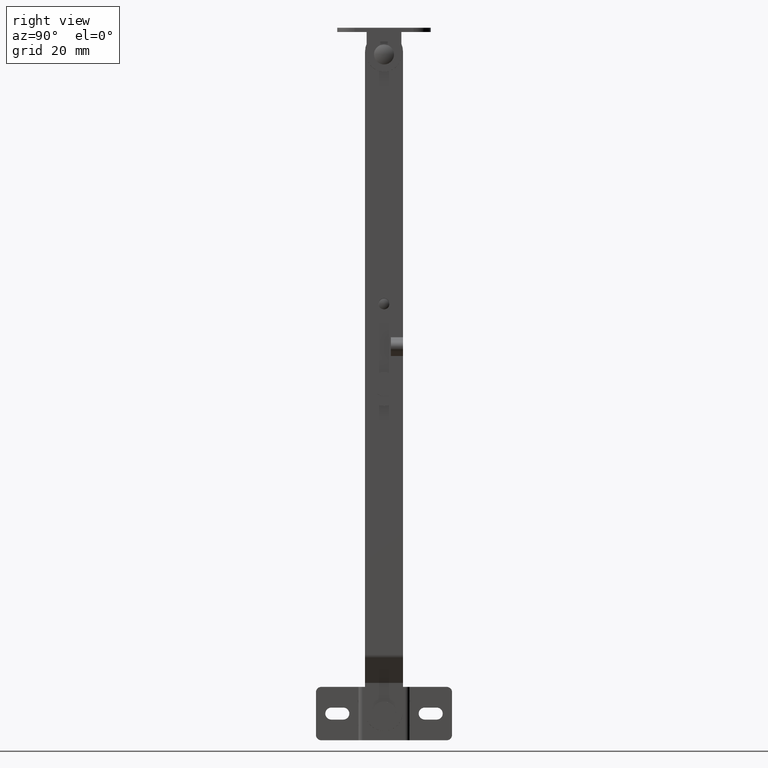
[diagram: clean part render]
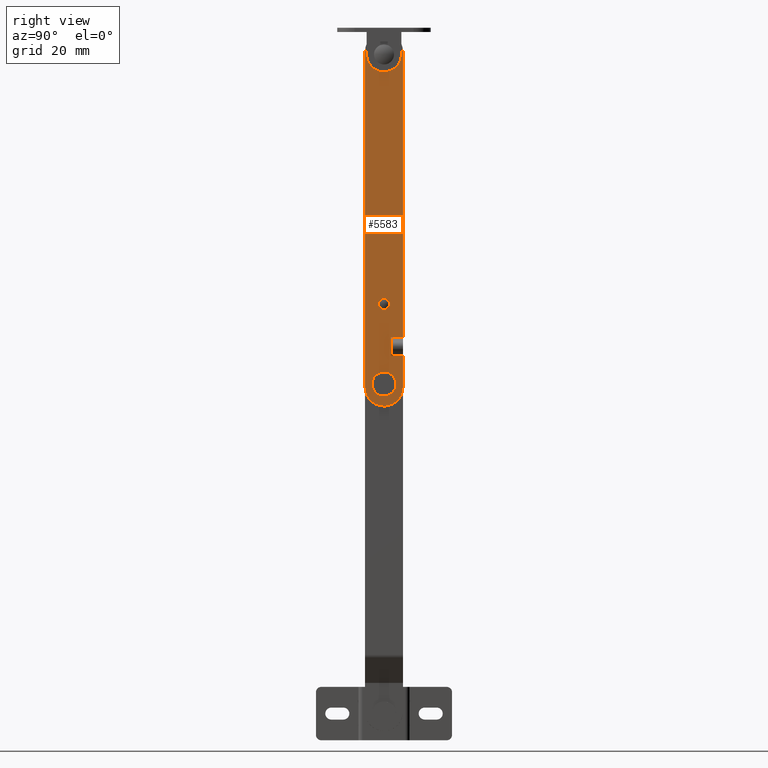
[diagram: same view with one face highlighted and labeled with its STEP entity id]
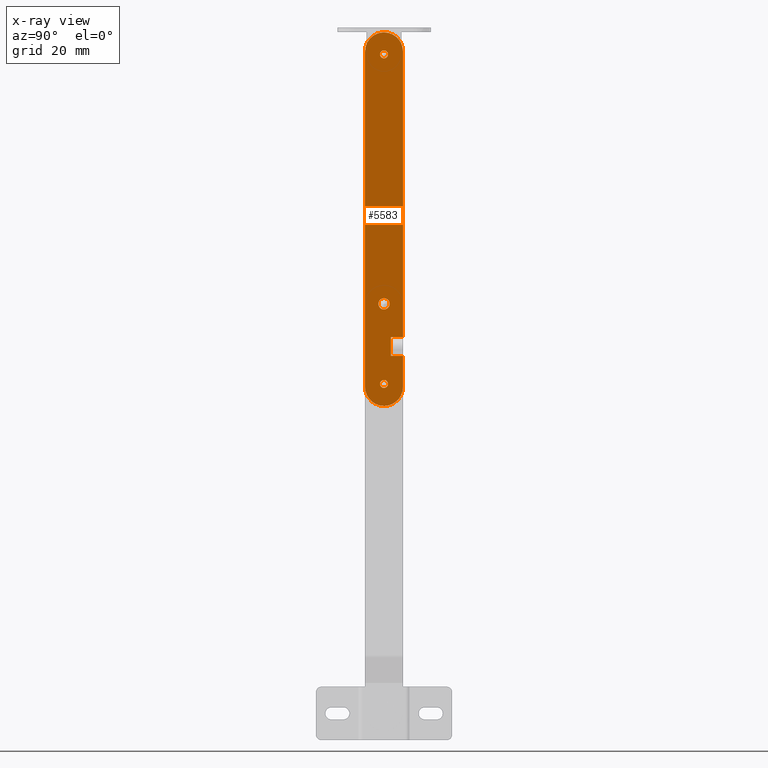
[diagram: x-ray of the same camera — body ghosted, the highlighted face saturated]
A machine part, right view. The second image highlights one B-rep face of the part: STEP entity #5583.
The next image is the same camera in x-ray: the body ghosted, the highlighted face saturated — about 0% of this face is hidden behind the body in this view.
In plain terms, the highlighted face is a freeform B-spline surface patch.
Its self-contained STEP definition (entity closure, byte-faithful):
#4414=CARTESIAN_POINT('',(20.300025000175680,-1.603468128169059,31.356059514502721));
#4415=VERTEX_POINT('',#4414);
#4416=CARTESIAN_POINT('',(20.300025000000051,-2.352999E-011,32.099999999999987));
#4417=VERTEX_POINT('',#4416);
#4418=CARTESIAN_POINT('',(20.300025000175680,-1.603468128169059,31.356059514502721));
#4419=CARTESIAN_POINT('',(20.300025000151550,-1.383004424346420,31.617801505023468));
#4420=CARTESIAN_POINT('',(20.300025000095779,-0.874131445198597,31.982927739498319));
#4421=CARTESIAN_POINT('',(20.300025000029191,-0.266090455257982,32.100189861607070));
#4422=CARTESIAN_POINT('',(20.300025000000051,-2.352999E-011,32.099999999999987));
#4423=B_SPLINE_CURVE_WITH_KNOTS('',3,(#4418,#4419,#4420,#4421,#4422),.UNSPECIFIED.,.F.,.U.,(4,1,4),(0.000000194144242,1.026274441210793,1.824540081092331),.UNSPECIFIED.);
#4424=EDGE_CURVE('',#4415,#4417,#4423,.T.);
#4478=CARTESIAN_POINT('',(20.300024999924041,-1.445543783051037,28.476715511782150));
#4479=VERTEX_POINT('',#4478);
#4485=CARTESIAN_POINT('',(20.300025000000051,-2.352999E-011,27.899999999999999));
#4486=VERTEX_POINT('',#4485);
#4487=CARTESIAN_POINT('',(20.300025000000051,-2.352999E-011,27.899999999999999));
#4488=CARTESIAN_POINT('',(20.300024999984259,-0.299021032730213,27.899613387441370));
#4489=CARTESIAN_POINT('',(20.300024999956548,-0.830051121281162,28.015528263508230));
#4490=CARTESIAN_POINT('',(20.300024999932820,-1.276978711193892,28.316568527708970));
#4491=CARTESIAN_POINT('',(20.300024999924041,-1.445543783051037,28.476715511782150));
#4492=B_SPLINE_CURVE_WITH_KNOTS('',3,(#4487,#4488,#4489,#4490,#4491),.UNSPECIFIED.,.F.,.U.,(4,1,4),(0.000168353066009,0.896973026362591,1.594479598773780),.UNSPECIFIED.);
#4493=EDGE_CURVE('',#4486,#4479,#4492,.T.);
#4495=CARTESIAN_POINT('',(20.300025000000051,2.099999999964161,29.999992809857861));
#4496=VERTEX_POINT('',#4495);
#4497=CARTESIAN_POINT('',(20.300025000000051,2.099999999964161,29.999992809857861));
#4498=CARTESIAN_POINT('',(20.300025000000069,2.100238049175137,29.742241289201470));
#4499=CARTESIAN_POINT('',(20.300025000000051,2.023075224258792,29.330094398910099));
#4500=CARTESIAN_POINT('',(20.300025000000041,1.736477162688858,28.777734402691710));
#4501=CARTESIAN_POINT('',(20.300025000000069,1.316738663492137,28.314268410450371));
#4502=CARTESIAN_POINT('',(20.300024999999959,0.704398945090311,27.977370575306651));
#4503=CARTESIAN_POINT('',(20.300025000000151,0.223347604811171,27.899908158145720));
#4504=CARTESIAN_POINT('',(20.300025000000051,-2.352999E-011,27.899999999999999));
#4505=B_SPLINE_CURVE_WITH_KNOTS('',3,(#4497,#4498,#4499,#4500,#4501,#4502,#4503,#4504),.UNSPECIFIED.,.F.,.U.,(4,1,1,1,1,4),(0.000000669543942,0.773144084286569,1.237077105179785,1.855504484025609,2.628699516542083,3.298751010646301),.UNSPECIFIED.);
#4506=EDGE_CURVE('',#4496,#4486,#4505,.T.);
#4508=CARTESIAN_POINT('',(20.300025000000051,-2.352999E-011,32.099999999999987));
#4509=CARTESIAN_POINT('',(20.300025000000051,0.223344249906007,32.100091894580132));
#4510=CARTESIAN_POINT('',(20.300025000000041,0.704421821062889,32.022621490242919));
#4511=CARTESIAN_POINT('',(20.300025000000058,1.255443030219893,31.719399572955918));
#4512=CARTESIAN_POINT('',(20.300025000000058,1.694891355889134,31.279807392928682));
#4513=CARTESIAN_POINT('',(20.300024999999991,2.010320660168506,30.738639030130539));
#4514=CARTESIAN_POINT('',(20.300025000000101,2.100215422149185,30.257734305901259));
#4515=CARTESIAN_POINT('',(20.300025000000051,2.099999999964161,29.999992809857861));
#4516=B_SPLINE_CURVE_WITH_KNOTS('',3,(#4508,#4509,#4510,#4511,#4512,#4513,#4514,#4515),.UNSPECIFIED.,.F.,.U.,(4,1,1,1,1,4),(0.000000659755377,0.670053802637903,1.443250727418345,1.855509066094740,2.525613798344707,3.298759115814550),.UNSPECIFIED.);
#4517=EDGE_CURVE('',#4417,#4496,#4516,.T.);
#4536=CARTESIAN_POINT('',(20.300025000000051,-2.100000000011220,30.000007190142139));
#4537=VERTEX_POINT('',#4536);
#4538=CARTESIAN_POINT('',(20.300025000000051,-2.100000000011220,30.000007190142139));
#4539=CARTESIAN_POINT('',(20.300025000035891,-2.100317205367119,30.276478192349281));
#4540=CARTESIAN_POINT('',(20.300025000099399,-2.001439458393902,30.767560601700460));
#4541=CARTESIAN_POINT('',(20.300025000154481,-1.742374739363892,31.191975189911950));
#4542=CARTESIAN_POINT('',(20.300025000175680,-1.603468128169059,31.356059514502721));
#4543=B_SPLINE_CURVE_WITH_KNOTS('',3,(#4538,#4539,#4540,#4541,#4542),.UNSPECIFIED.,.F.,.U.,(4,1,4),(0.000000101963803,0.829293668252880,1.474300570408685),.UNSPECIFIED.);
#4544=EDGE_CURVE('',#4537,#4415,#4543,.T.);
#4546=CARTESIAN_POINT('',(20.300024999924041,-1.445543783051037,28.476715511782150));
#4547=CARTESIAN_POINT('',(20.300024999931381,-1.600128257361153,28.623311986195510));
#4548=CARTESIAN_POINT('',(20.300024999954001,-1.952227095339705,29.077612577395630));
#4549=CARTESIAN_POINT('',(20.300024999982320,-2.100913316347401,29.644725157993399));
#4550=CARTESIAN_POINT('',(20.300025000000051,-2.100000000011220,30.000007190142139));
#4551=B_SPLINE_CURVE_WITH_KNOTS('',3,(#4546,#4547,#4548,#4549,#4550),.UNSPECIFIED.,.F.,.U.,(4,1,4),(0.000000174356084,0.639156456979756,1.704365577580422),.UNSPECIFIED.);
#4552=EDGE_CURVE('',#4479,#4537,#4551,.T.);
#4599=CARTESIAN_POINT('',(20.300025000000051,-1.858299E-013,125.0));
#4600=VERTEX_POINT('',#4599);
#4601=CARTESIAN_POINT('',(20.300025000001220,0.993930618051474,124.623433132126390));
#4602=VERTEX_POINT('',#4601);
#4603=CARTESIAN_POINT('',(20.300025000000051,-1.858299E-013,125.0));
#4604=CARTESIAN_POINT('',(20.300025000000211,0.158449161908415,125.000075941840710));
#4605=CARTESIAN_POINT('',(20.300025000000680,0.520576267112770,124.942079518250000));
#4606=CARTESIAN_POINT('',(20.300025000001039,0.841490520758465,124.758634330623290));
#4607=CARTESIAN_POINT('',(20.300025000001220,0.993930618051474,124.623433132126390));
#4608=B_SPLINE_CURVE_WITH_KNOTS('',3,(#4603,#4604,#4605,#4606,#4607),.UNSPECIFIED.,.F.,.U.,(4,1,4),(0.000000170370501,0.475386469043554,1.086560866127715),.UNSPECIFIED.);
#4609=EDGE_CURVE('',#4600,#4602,#4608,.T.);
#4611=CARTESIAN_POINT('',(20.300025000000051,-1.500000000000183,123.499999898093290));
#4612=VERTEX_POINT('',#4611);
#4613=CARTESIAN_POINT('',(20.300025000000051,-1.500000000000183,123.499999898093290));
#4614=CARTESIAN_POINT('',(20.300025000000069,-1.500220001690564,123.696388157995500));
#4615=CARTESIAN_POINT('',(20.300025000000019,-1.441284626469428,123.990730988000290));
#4616=CARTESIAN_POINT('',(20.300025000000051,-1.208846329325897,124.425798509353000));
#4617=CARTESIAN_POINT('',(20.300025000000080,-0.784375401925024,124.850603324239000));
#4618=CARTESIAN_POINT('',(20.300025000000030,-0.294792637290701,125.001064521656600));
#4619=CARTESIAN_POINT('',(20.300025000000051,-1.858299E-013,125.0));
#4620=B_SPLINE_CURVE_WITH_KNOTS('',3,(#4613,#4614,#4615,#4616,#4617,#4618,#4619),.UNSPECIFIED.,.F.,.U.,(4,1,1,1,4),(0.000000459267545,0.589113397398040,0.883685197252487,1.472733067264570,2.356430882423105),.UNSPECIFIED.);
#4621=EDGE_CURVE('',#4612,#4600,#4620,.T.);
#4623=CARTESIAN_POINT('',(20.300025000000051,-1.858299E-013,122.0));
#4624=VERTEX_POINT('',#4623);
#4625=CARTESIAN_POINT('',(20.300025000000051,-1.858299E-013,122.0));
#4626=CARTESIAN_POINT('',(20.300025000000041,-0.196372768414404,121.999801190488200));
#4627=CARTESIAN_POINT('',(20.300025000000051,-0.588932717686156,122.078215306268800));
#4628=CARTESIAN_POINT('',(20.300025000000041,-1.088373114510708,122.411598147367600));
#4629=CARTESIAN_POINT('',(20.300025000000041,-1.421794249724093,122.911109232010200));
#4630=CARTESIAN_POINT('',(20.300025000000058,-1.500200246819130,123.303610862655500));
#4631=CARTESIAN_POINT('',(20.300025000000051,-1.500000000000183,123.499999898093290));
#4632=B_SPLINE_CURVE_WITH_KNOTS('',3,(#4625,#4626,#4627,#4628,#4629,#4630,#4631),.UNSPECIFIED.,.F.,.U.,(4,1,1,1,4),(0.000000459810171,0.589113369120402,1.178215900985404,1.767323334941975,2.356430767539216),.UNSPECIFIED.);
#4633=EDGE_CURVE('',#4624,#4612,#4632,.T.);
#4635=CARTESIAN_POINT('',(20.300024999997639,1.123433093831096,122.506069414987190));
#4636=VERTEX_POINT('',#4635);
#4637=CARTESIAN_POINT('',(20.300024999997639,1.123433093831096,122.506069414987190));
#4638=CARTESIAN_POINT('',(20.300024999997898,1.000858788643078,122.367260499779900));
#4639=CARTESIAN_POINT('',(20.300024999998620,0.660860005487706,122.103094351646210));
#4640=CARTESIAN_POINT('',(20.300024999999518,0.238188124898165,121.999513806679800));
#4641=CARTESIAN_POINT('',(20.300025000000051,-1.858299E-013,122.0));
#4642=B_SPLINE_CURVE_WITH_KNOTS('',3,(#4637,#4638,#4639,#4640,#4641),.UNSPECIFIED.,.F.,.U.,(4,1,4),(0.000000187069445,0.555570888482042,1.269874217218233),.UNSPECIFIED.);
#4643=EDGE_CURVE('',#4636,#4624,#4642,.T.);
#4718=CARTESIAN_POINT('',(20.300025000000051,1.499999999999811,123.500000101906710));
#4719=VERTEX_POINT('',#4718);
#4720=CARTESIAN_POINT('',(20.300025000001220,0.993930618051474,124.623433132126390));
#4721=CARTESIAN_POINT('',(20.300025000001099,1.132733915963367,124.500840976320500));
#4722=CARTESIAN_POINT('',(20.300025000000730,1.396918973753524,124.160883984367300));
#4723=CARTESIAN_POINT('',(20.300025000000289,1.500479295973612,123.738175746915500));
#4724=CARTESIAN_POINT('',(20.300025000000051,1.499999999999811,123.500000101906710));
#4725=B_SPLINE_CURVE_WITH_KNOTS('',3,(#4720,#4721,#4722,#4723,#4724),.UNSPECIFIED.,.F.,.U.,(4,1,4),(0.000000187058315,0.555570853525134,1.269874137313972),.UNSPECIFIED.);
#4726=EDGE_CURVE('',#4602,#4719,#4725,.T.);
#4748=CARTESIAN_POINT('',(20.300025000000051,1.499999999999811,123.500000101906710));
#4749=CARTESIAN_POINT('',(20.300024999999561,1.500264733051444,123.296243731773100));
#4750=CARTESIAN_POINT('',(20.300024999998691,1.424983512856893,122.934334457773400));
#4751=CARTESIAN_POINT('',(20.300024999997930,1.228485911520583,122.624691564460600));
#4752=CARTESIAN_POINT('',(20.300024999997639,1.123433093831096,122.506069414987190));
#4753=B_SPLINE_CURVE_WITH_KNOTS('',3,(#4748,#4749,#4750,#4751,#4752),.UNSPECIFIED.,.F.,.U.,(4,1,4),(0.000000170363327,0.611174614836045,1.086560950374022),.UNSPECIFIED.);
#4754=EDGE_CURVE('',#4719,#4636,#4753,.T.);
#4781=CARTESIAN_POINT('',(20.300025000000051,0.0,1.500000000000000));
#4782=VERTEX_POINT('',#4781);
#4783=CARTESIAN_POINT('',(20.300025000001220,0.993930618051662,1.123433132126381));
#4784=VERTEX_POINT('',#4783);
#4785=CARTESIAN_POINT('',(20.300025000000051,0.0,1.500000000000000));
#4786=CARTESIAN_POINT('',(20.300025000000321,0.203756458742375,1.500255610408381));
#4787=CARTESIAN_POINT('',(20.300025000000691,0.565668889200674,1.424986753171165));
#4788=CARTESIAN_POINT('',(20.300025000001082,0.875305893784652,1.228487559786638));
#4789=CARTESIAN_POINT('',(20.300025000001220,0.993930618051662,1.123433132126381));
#4790=B_SPLINE_CURVE_WITH_KNOTS('',3,(#4785,#4786,#4787,#4788,#4789),.UNSPECIFIED.,.F.,.U.,(4,1,4),(0.000000170370416,0.611174567452055,1.086560866127707),.UNSPECIFIED.);
#4791=EDGE_CURVE('',#4782,#4784,#4790,.T.);
#4793=CARTESIAN_POINT('',(20.300025000000051,-1.499999999999997,-0.000000101906711));
#4794=VERTEX_POINT('',#4793);
#4795=CARTESIAN_POINT('',(20.300025000000051,-1.499999999999997,-0.000000101906711));
#4796=CARTESIAN_POINT('',(20.300025000000030,-1.500194785926057,0.196371744558974));
#4797=CARTESIAN_POINT('',(20.300025000000069,-1.421812459674860,0.588950740794332));
#4798=CARTESIAN_POINT('',(20.300025000000041,-1.116107416236168,1.046632174371724));
#4799=CARTESIAN_POINT('',(20.300025000000051,-0.637644867531161,1.401328501884761));
#4800=CARTESIAN_POINT('',(20.300025000000030,-0.245579743485273,1.500511619005137));
#4801=CARTESIAN_POINT('',(20.300025000000051,0.0,1.500000000000000));
#4802=B_SPLINE_CURVE_WITH_KNOTS('',3,(#4795,#4796,#4797,#4798,#4799,#4800,#4801),.UNSPECIFIED.,.F.,.U.,(4,1,1,1,4),(0.000000459268587,0.589113397398972,1.178215958646175,1.620021368977728,2.356430882423041),.UNSPECIFIED.);
#4803=EDGE_CURVE('',#4794,#4782,#4802,.T.);
#4805=CARTESIAN_POINT('',(20.300025000000051,0.0,-1.500000000000000));
#4806=VERTEX_POINT('',#4805);
#4807=CARTESIAN_POINT('',(20.300025000000051,0.0,-1.500000000000000));
#4808=CARTESIAN_POINT('',(20.300025000000030,-0.196384793522591,-1.500198055552826));
#4809=CARTESIAN_POINT('',(20.300025000000058,-0.588896916659341,-1.421792867655248));
#4810=CARTESIAN_POINT('',(20.300025000000058,-1.088403148893003,-1.088372299118266));
#4811=CARTESIAN_POINT('',(20.300025000000041,-1.421784846237707,-0.588927974838621));
#4812=CARTESIAN_POINT('',(20.300025000000051,-1.500199243014646,-0.196375145936481));
#4813=CARTESIAN_POINT('',(20.300025000000051,-1.499999999999997,-0.000000101906711));
#4814=B_SPLINE_CURVE_WITH_KNOTS('',3,(#4807,#4808,#4809,#4810,#4811,#4812,#4813),.UNSPECIFIED.,.F.,.U.,(4,1,1,1,4),(0.000000459807827,0.589113369118813,1.178215900984567,1.767323334941643,2.356430767539226),.UNSPECIFIED.);
#4815=EDGE_CURVE('',#4806,#4794,#4814,.T.);
#4817=CARTESIAN_POINT('',(20.300024999997639,1.123433093831279,-0.993930585012772));
#4818=VERTEX_POINT('',#4817);
#4819=CARTESIAN_POINT('',(20.300024999997639,1.123433093831279,-0.993930585012772));
#4820=CARTESIAN_POINT('',(20.300024999997991,0.965972738264751,-1.172631011205449));
#4821=CARTESIAN_POINT('',(20.300024999998762,0.608313847087858,-1.420599831866489));
#4822=CARTESIAN_POINT('',(20.300024999999650,0.185191396016782,-1.500157344920500));
#4823=CARTESIAN_POINT('',(20.300025000000051,0.0,-1.500000000000000));
#4824=B_SPLINE_CURVE_WITH_KNOTS('',3,(#4819,#4820,#4821,#4822,#4823),.UNSPECIFIED.,.F.,.U.,(4,1,4),(0.000000187069412,0.714303515798030,1.269874217218213),.UNSPECIFIED.);
#4825=EDGE_CURVE('',#4818,#4806,#4824,.T.);
#4900=CARTESIAN_POINT('',(20.300025000000051,1.499999999999996,0.000000101906706));
#4901=VERTEX_POINT('',#4900);
#4902=CARTESIAN_POINT('',(20.300025000001220,0.993930618051662,1.123433132126381));
#4903=CARTESIAN_POINT('',(20.300025000001099,1.172630027640951,0.965972993236029));
#4904=CARTESIAN_POINT('',(20.300025000000652,1.420600143093566,0.608313960429770));
#4905=CARTESIAN_POINT('',(20.300025000000261,1.500157085971313,0.185190336836450));
#4906=CARTESIAN_POINT('',(20.300025000000051,1.499999999999996,0.000000101906706));
#4907=B_SPLINE_CURVE_WITH_KNOTS('',3,(#4902,#4903,#4904,#4905,#4906),.UNSPECIFIED.,.F.,.U.,(4,1,4),(0.000000187058498,0.714303470854988,1.269874137313960),.UNSPECIFIED.);
#4908=EDGE_CURVE('',#4784,#4901,#4907,.T.);
#4930=CARTESIAN_POINT('',(20.300025000000051,1.499999999999996,0.000000101906706));
#4931=CARTESIAN_POINT('',(20.300024999999579,1.500254763292414,-0.203754238332136));
#4932=CARTESIAN_POINT('',(20.300024999998659,1.424989593530907,-0.565663681981802));
#4933=CARTESIAN_POINT('',(20.300024999997930,1.228485380704284,-0.875310086494921));
#4934=CARTESIAN_POINT('',(20.300024999997639,1.123433093831279,-0.993930585012772));
#4935=B_SPLINE_CURVE_WITH_KNOTS('',3,(#4930,#4931,#4932,#4933,#4934),.UNSPECIFIED.,.F.,.U.,(4,1,4),(0.000000170363716,0.611174614836025,1.086560950374016),.UNSPECIFIED.);
#4936=EDGE_CURVE('',#4901,#4818,#4935,.T.);
#5003=CARTESIAN_POINT('',(20.300006499990570,7.100000000000001,10.500000000000000));
#5004=VERTEX_POINT('',#5003);
#5011=CARTESIAN_POINT('',(20.300012666660368,2.599999999999910,10.500009835268621));
#5012=VERTEX_POINT('',#5011);
#5018=CARTESIAN_POINT('',(20.300012666660368,2.599999999999910,10.500009835268621));
#5019=CARTESIAN_POINT('',(20.300006499990570,7.100000000000001,10.500000000000000));
#5020=QUASI_UNIFORM_CURVE('',1,(#5018,#5019),.UNSPECIFIED.,.F.,.U.);
#5021=EDGE_CURVE('',#5012,#5004,#5020,.T.);
#5116=CARTESIAN_POINT('',(20.300025000000002,2.599999999999910,12.991832183000460));
#5117=VERTEX_POINT('',#5116);
#5151=CARTESIAN_POINT('',(20.300025000000051,2.599999999999910,15.008167816963001));
#5152=VERTEX_POINT('',#5151);
#5247=CARTESIAN_POINT('',(20.300006500032829,7.100000000000001,17.500000000000000));
#5248=VERTEX_POINT('',#5247);
#5254=CARTESIAN_POINT('',(20.300012666674451,2.599999999999910,17.499990164753779));
#5255=VERTEX_POINT('',#5254);
#5256=CARTESIAN_POINT('',(20.300006500032829,7.100000000000001,17.500000000000000));
#5257=CARTESIAN_POINT('',(20.300012666674451,2.599999999999910,17.499990164753779));
#5258=QUASI_UNIFORM_CURVE('',1,(#5256,#5257),.UNSPECIFIED.,.F.,.U.);
#5259=EDGE_CURVE('',#5248,#5255,#5258,.T.);
#5278=CARTESIAN_POINT('',(20.300012666674451,2.599999999999910,17.499990164753779));
#5279=CARTESIAN_POINT('',(20.300025000000051,2.599999999999910,15.008167816963001));
#5280=QUASI_UNIFORM_CURVE('',1,(#5278,#5279),.UNSPECIFIED.,.F.,.U.);
#5281=EDGE_CURVE('',#5255,#5152,#5280,.T.);
#5285=CARTESIAN_POINT('',(20.300025000000002,2.599999999999910,12.991832183000460));
#5286=CARTESIAN_POINT('',(20.300012666660368,2.599999999999910,10.500009835268621));
#5287=QUASI_UNIFORM_CURVE('',1,(#5285,#5286),.UNSPECIFIED.,.F.,.U.);
#5288=EDGE_CURVE('',#5117,#5012,#5287,.T.);
#5311=CARTESIAN_POINT('',(20.300025000000051,7.100000000000111,-1.150000000000020));
#5312=VERTEX_POINT('',#5311);
#5313=CARTESIAN_POINT('',(20.300025000000051,0.000000035110811,-8.250000000000036));
#5314=VERTEX_POINT('',#5313);
#5315=CARTESIAN_POINT('',(20.300025000000051,7.100000000000111,-1.150000000000020));
#5316=CARTESIAN_POINT('',(20.300025000000058,7.100211070392304,-1.788974917254314));
#5317=CARTESIAN_POINT('',(20.300025000000041,6.965755348402358,-2.776311463962723));
#5318=CARTESIAN_POINT('',(20.300025000000058,6.475165264907525,-4.147323348526208));
#5319=CARTESIAN_POINT('',(20.300025000000051,5.813549945705702,-5.315426862780956));
#5320=CARTESIAN_POINT('',(20.300025000000041,4.923121250339662,-6.322329025795698));
#5321=CARTESIAN_POINT('',(20.300025000000101,3.867009101680488,-7.146416057914420));
#5322=CARTESIAN_POINT('',(20.300024999999881,2.322871250324006,-7.972357918238757));
#5323=CARTESIAN_POINT('',(20.300025000000179,0.929550791771678,-8.250891087729105));
#5324=CARTESIAN_POINT('',(20.300025000000051,0.000000035110811,-8.250000000000036));
#5325=B_SPLINE_CURVE_WITH_KNOTS('',3,(#5315,#5316,#5317,#5318,#5319,#5320,#5321,#5322,#5323,#5324),.UNSPECIFIED.,.F.,.U.,(4,1,1,1,1,1,1,4),(0.000000104937181,1.916878179225030,2.962505885221194,4.356644180242981,5.924987654864601,6.970549418998798,8.364700347589293,11.152933764986710),.UNSPECIFIED.);
#5326=EDGE_CURVE('',#5312,#5314,#5325,.T.);
#5328=CARTESIAN_POINT('',(20.300025000000051,-7.100000000000140,-1.149999999999852));
#5329=VERTEX_POINT('',#5328);
#5330=CARTESIAN_POINT('',(20.300025000000051,0.000000035110811,-8.250000000000036));
#5331=CARTESIAN_POINT('',(20.300025000000030,-0.755177927610915,-8.250393845595053));
#5332=CARTESIAN_POINT('',(20.300025000000112,-1.974695104444642,-8.053480566885327));
#5333=CARTESIAN_POINT('',(20.300025000000002,-3.789108221638057,-7.249352634031959));
#5334=CARTESIAN_POINT('',(20.300025000000069,-5.121076020679127,-6.183549991898387));
#5335=CARTESIAN_POINT('',(20.300025000000090,-6.129077241786123,-4.823606989142046));
#5336=CARTESIAN_POINT('',(20.300024999999980,-6.877882300163873,-3.240786018417052));
#5337=CARTESIAN_POINT('',(20.300025000000169,-7.100635697688434,-1.963304441217702));
#5338=CARTESIAN_POINT('',(20.300025000000051,-7.100000000000140,-1.149999999999852));
#5339=B_SPLINE_CURVE_WITH_KNOTS('',3,(#5330,#5331,#5332,#5333,#5334,#5335,#5336,#5337,#5338),.UNSPECIFIED.,.F.,.U.,(4,1,1,1,1,1,4),(0.000000104890937,2.265418676070018,3.659585634879667,5.924987675795583,7.319079476249270,8.713244113137289,11.152933804565841),.UNSPECIFIED.);
#5340=EDGE_CURVE('',#5314,#5329,#5339,.T.);
#5434=CARTESIAN_POINT('',(20.300025000000051,-7.100000000000200,124.650000000000010));
#5435=VERTEX_POINT('',#5434);
#5441=CARTESIAN_POINT('',(20.300025000000051,0.000004087301126,131.749999999998810));
#5442=VERTEX_POINT('',#5441);
#5443=CARTESIAN_POINT('',(20.300025000000051,-7.100000000000200,124.650000000000010));
#5444=CARTESIAN_POINT('',(20.300025000000080,-7.100813136282770,125.521450037748000));
#5445=CARTESIAN_POINT('',(20.300025000000041,-6.872557419304397,126.740681279403900));
#5446=CARTESIAN_POINT('',(20.300025000000051,-6.150116235757092,128.267515499460390));
#5447=CARTESIAN_POINT('',(20.300025000000090,-5.243069031509911,129.556337270568090));
#5448=CARTESIAN_POINT('',(20.300025000000041,-4.027723364990192,130.578822723900490));
#5449=CARTESIAN_POINT('',(20.300025000000080,-2.206614476227465,131.495333530278200));
#5450=CARTESIAN_POINT('',(20.300025000000041,-0.929621318905026,131.751065718059100));
#5451=CARTESIAN_POINT('',(20.300025000000051,0.000004087301126,131.749999999998810));
#5452=B_SPLINE_CURVE_WITH_KNOTS('',3,(#5443,#5444,#5445,#5446,#5447,#5448,#5449,#5450,#5451),.UNSPECIFIED.,.F.,.U.,(4,1,1,1,1,1,4),(0.000000102131949,2.613962544152090,3.659586381774576,5.053685823165599,7.319080974187696,8.364702090995952,11.152936088503431),.UNSPECIFIED.);
#5453=EDGE_CURVE('',#5435,#5442,#5452,.T.);
#5455=CARTESIAN_POINT('',(20.300025000000051,7.099999999999820,124.650000000000010));
#5456=VERTEX_POINT('',#5455);
#5457=CARTESIAN_POINT('',(20.300025000000051,0.000004087301126,131.749999999998810));
#5458=CARTESIAN_POINT('',(20.300025000000051,0.755169632385046,131.750415376341610));
#5459=CARTESIAN_POINT('',(20.300025000000069,2.207137740290585,131.516176850945810));
#5460=CARTESIAN_POINT('',(20.300025000000019,3.833000703190531,130.697759903621690));
#5461=CARTESIAN_POINT('',(20.300025000000080,5.138715822829388,129.626121123019200));
#5462=CARTESIAN_POINT('',(20.300025000000051,6.054334232204902,128.482035384536090));
#5463=CARTESIAN_POINT('',(20.300025000000051,6.877950600812501,126.740758198273300));
#5464=CARTESIAN_POINT('',(20.300025000000041,7.100515671707737,125.463298143340690));
#5465=CARTESIAN_POINT('',(20.300025000000051,7.099999999999820,124.650000000000010));
#5466=B_SPLINE_CURVE_WITH_KNOTS('',3,(#5457,#5458,#5459,#5460,#5461,#5462,#5463,#5464,#5465),.UNSPECIFIED.,.F.,.U.,(4,1,1,1,1,1,4),(0.000000107714991,2.265418206500263,4.356643291328299,5.402203936872396,7.319077952356714,8.713242297294340,11.152931481047551),.UNSPECIFIED.);
#5467=EDGE_CURVE('',#5442,#5456,#5466,.T.);
#5483=CARTESIAN_POINT('',(20.300025000000051,-7.100000000000140,-1.149999999999852));
#5484=CARTESIAN_POINT('',(20.300025000000051,-7.100000000000200,124.650000000000010));
#5485=QUASI_UNIFORM_CURVE('',1,(#5483,#5484),.UNSPECIFIED.,.F.,.U.);
#5486=EDGE_CURVE('',#5329,#5435,#5485,.T.);
#5508=CARTESIAN_POINT('',(20.300025000000051,7.099999999999820,124.650000000000010));
#5509=CARTESIAN_POINT('',(20.300006500032829,7.100000000000001,17.500000000000000));
#5510=QUASI_UNIFORM_CURVE('',1,(#5508,#5509),.UNSPECIFIED.,.F.,.U.);
#5511=EDGE_CURVE('',#5456,#5248,#5510,.T.);
#5516=CARTESIAN_POINT('',(20.300006499990570,7.100000000000001,10.500000000000000));
#5517=CARTESIAN_POINT('',(20.300025000000051,7.100000000000111,-1.150000000000020));
#5518=QUASI_UNIFORM_CURVE('',1,(#5516,#5517),.UNSPECIFIED.,.F.,.U.);
#5519=EDGE_CURVE('',#5004,#5312,#5518,.T.);
#5536=CARTESIAN_POINT('',(20.300025000000002,7.809289972477773,-15.242999728652840));
#5537=CARTESIAN_POINT('',(20.300025000000002,-7.809290353351539,-15.242999728652840));
#5538=CARTESIAN_POINT('',(20.300025000000002,7.809289972477773,138.743003483744190));
#5539=CARTESIAN_POINT('',(20.300025000000002,-7.809290353351539,138.743003483744190));
#5540=B_SPLINE_SURFACE_WITH_KNOTS('',1,1,((#5536,#5538),(#5537,#5539)),.UNSPECIFIED.,.F.,.F.,.U.,(2,2),(2,2),(0.0,15.618580325829310),(0.0,153.986003212397010),.UNSPECIFIED.);
#5541=ORIENTED_EDGE('',*,*,#5021,.F.);
#5542=ORIENTED_EDGE('',*,*,#5288,.F.);
#5543=CARTESIAN_POINT('',(20.300025000000051,2.599999999999910,15.008167816963001));
#5544=CARTESIAN_POINT('',(20.300025000000002,2.599999999999910,12.991832183000460));
#5545=QUASI_UNIFORM_CURVE('',1,(#5543,#5544),.UNSPECIFIED.,.F.,.U.);
#5546=EDGE_CURVE('',#5152,#5117,#5545,.T.);
#5547=ORIENTED_EDGE('',*,*,#5546,.F.);
#5548=ORIENTED_EDGE('',*,*,#5281,.F.);
#5549=ORIENTED_EDGE('',*,*,#5259,.F.);
#5550=ORIENTED_EDGE('',*,*,#5511,.F.);
#5551=ORIENTED_EDGE('',*,*,#5467,.F.);
#5552=ORIENTED_EDGE('',*,*,#5453,.F.);
#5553=ORIENTED_EDGE('',*,*,#5486,.F.);
#5554=ORIENTED_EDGE('',*,*,#5340,.F.);
#5555=ORIENTED_EDGE('',*,*,#5326,.F.);
#5556=ORIENTED_EDGE('',*,*,#5519,.F.);
#5557=EDGE_LOOP('',(#5541,#5542,#5547,#5548,#5549,#5550,#5551,#5552,#5553,#5554,#5555,#5556));
#5558=FACE_OUTER_BOUND('',#5557,.T.);
#5559=ORIENTED_EDGE('',*,*,#4633,.T.);
#5560=ORIENTED_EDGE('',*,*,#4621,.T.);
#5561=ORIENTED_EDGE('',*,*,#4609,.T.);
#5562=ORIENTED_EDGE('',*,*,#4726,.T.);
#5563=ORIENTED_EDGE('',*,*,#4754,.T.);
#5564=ORIENTED_EDGE('',*,*,#4643,.T.);
#5565=EDGE_LOOP('',(#5559,#5560,#5561,#5562,#5563,#5564));
#5566=FACE_BOUND('',#5565,.T.);
#5567=ORIENTED_EDGE('',*,*,#4815,.T.);
#5568=ORIENTED_EDGE('',*,*,#4803,.T.);
#5569=ORIENTED_EDGE('',*,*,#4791,.T.);
#5570=ORIENTED_EDGE('',*,*,#4908,.T.);
#5571=ORIENTED_EDGE('',*,*,#4936,.T.);
#5572=ORIENTED_EDGE('',*,*,#4825,.T.);
#5573=EDGE_LOOP('',(#5567,#5568,#5569,#5570,#5571,#5572));
#5574=FACE_BOUND('',#5573,.T.);
#5575=ORIENTED_EDGE('',*,*,#4517,.T.);
#5576=ORIENTED_EDGE('',*,*,#4506,.T.);
#5577=ORIENTED_EDGE('',*,*,#4493,.T.);
#5578=ORIENTED_EDGE('',*,*,#4552,.T.);
#5579=ORIENTED_EDGE('',*,*,#4544,.T.);
#5580=ORIENTED_EDGE('',*,*,#4424,.T.);
#5581=EDGE_LOOP('',(#5575,#5576,#5577,#5578,#5579,#5580));
#5582=FACE_BOUND('',#5581,.T.);
#5583=ADVANCED_FACE('',(#5558,#5566,#5574,#5582),#5540,.F.);